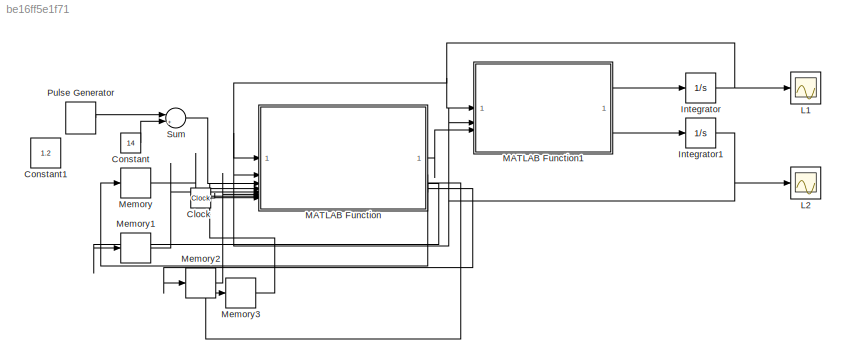
MODEL slx_be16ff5e1f71
KIND model
CONFIG AbsTol = auto
CONFIG EnableMultiTasking = off
CONFIG FixedStep = auto
CONFIG MaxStep = auto
CONFIG MinStep = auto
CONFIG RelTol = 1e-3
CONFIG SampleTimeConstraint = Unconstrained
CONFIG SolverName = VariableStepAuto
CONFIG StartTime = 0.0
CONFIG StopTime = 100
BLOCK [Clock] Clock
BLOCK [Constant] Constant
  Value = 14
BLOCK [Constant] Constant1
  Value = 1.2
BLOCK [Integrator] Integrator
BLOCK [Integrator] Integrator1
BLOCK [Scope] L1
  ActiveDisplayYMaximum = 8.6893327676980583
  ActiveDisplayYMinimum = -8.1372648827145362
  ContainerLayout = {"WindowBounds":[1280,1417,423,710],"gridDimensions":{"w":1,"h":1},"tileCount":1,"tileCoverage":1,"columnWeights":1,"rowWeights":1,"tileOccupancy":{"children":[{"id":"/L2"},{"id":"/L1"}]}}
  Floating = off
  GraphicalSettings = {"Style":{"BackgroundColor":[0.12941176470588237,0.12941176470588237,0.12941176470588237],"AxesColor":[0.07058823529411765,0.07058823529411765,0.07058823529411765],"LabelsColor":[0.8509803921568627,0.8509803921568627,0.8509803921568627],"PreserveColors":false,"Visible":[true],"LineStyle":["-"],"LineWidth":[1.5],"BarWidth":[0.9],"LineColor":["auto"],"LineFaceAlpha":[1],"LineEdgeAlpha":[1],"Marker":...<+1999ch>
  MultipleDisplayCache = [{"MaxYLimMag":7.5719689426856673,"MaxYLimReal":8.6893327676980583,"MinYLimMag":0,"MinYLimReal":-8.1372648827145362,"PlotAsMagnitudePhase":false,"ShowGrid":true,"ShowLegend":false,"Title":"%<SignalLabel>","YLabel":""}]
  NumInputPorts = 1
  WasSavedAsWebScope = on
BLOCK [Scope] L2
  ActiveDisplayYMaximum = 20.189488092755962
  ActiveDisplayYMinimum = -4.3997183929436492
  ContainerLayout = {"WindowBounds":[1280,1417,423,710],"gridDimensions":{"w":1,"h":1},"tileCount":1,"tileCoverage":1,"columnWeights":1,"rowWeights":1,"tileOccupancy":{"children":[{"id":"/L2"},{"id":"/L1"}]}}
  DataLoggingVariableName = ScopeData1
  Floating = off
  GraphicalSettings = {"AxesScalingProperties":{"AlignXAxis":"Center","AlignYAxis":"Center","AutoScaleXAxisLimits":false,"AxesScaling":"Manual","AxesScalingNumUpdates":10,"ExpandOnly":true,"ScaleAxesLimitsAtStop":false,"XAxisDataRange":100,"YAxisDataRange":80},"DisplayProperties":{"ColorOrder":["auto","auto","auto","auto","auto","auto","auto","auto","auto","auto","auto","auto","auto","auto","auto","auto","auto","auto",...<+2014ch>
  MultipleDisplayCache = [{"MaxYLimMag":16.862840807774788,"MaxYLimReal":20.189488092755962,"MinYLimMag":0,"MinYLimReal":-4.3997183929436492,"PlotAsMagnitudePhase":false,"ShowGrid":true,"ShowLegend":false,"Title":"%<SignalLabel>","YLabel":""}]
  NumInputPorts = 1
  WasSavedAsWebScope = on
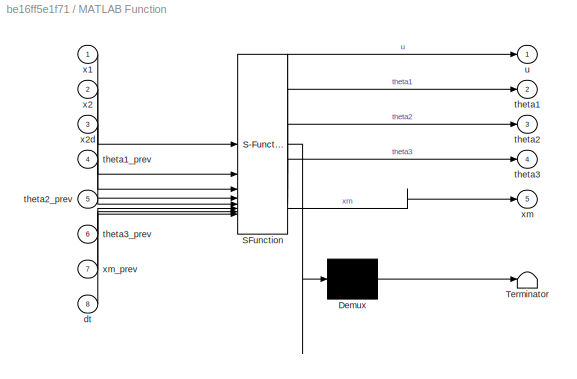
BLOCK [SubSystem] MATLAB Function
  ErrorFcn = Stateflow.Translate.translate
  PermitHierarchicalResolution = ExplicitOnly
  SFBlockType = MATLAB Function
  TreatAsAtomicUnit = on
BLOCK [Demux] MATLAB Function/ Demux 
  Outputs = 1
BLOCK [S-Function] MATLAB Function/ SFunction 
  EnableBusSupport = off
  FunctionName = sf_sfun
  PortCounts = [8 6]
  SFcnIsStateOwnerBlock = off
  SFunctionDeploymentMode = off
  Tag = Stateflow S-Function 2
BLOCK [Terminator] MATLAB Function/ Terminator 
BLOCK [Inport] MATLAB Function/dt
  Port = 8
BLOCK [Outport] MATLAB Function/theta1
  Port = 2
BLOCK [Inport] MATLAB Function/theta1_prev
  Port = 4
BLOCK [Outport] MATLAB Function/theta2
  Port = 3
BLOCK [Inport] MATLAB Function/theta2_prev
  Port = 5
BLOCK [Outport] MATLAB Function/theta3
  Port = 4
BLOCK [Inport] MATLAB Function/theta3_prev
  Port = 6
BLOCK [Outport] MATLAB Function/u
BLOCK [Inport] MATLAB Function/x1
BLOCK [Inport] MATLAB Function/x2
  Port = 2
BLOCK [Inport] MATLAB Function/x2d
  Port = 3
BLOCK [Outport] MATLAB Function/xm
  Port = 5
BLOCK [Inport] MATLAB Function/xm_prev
  Port = 7
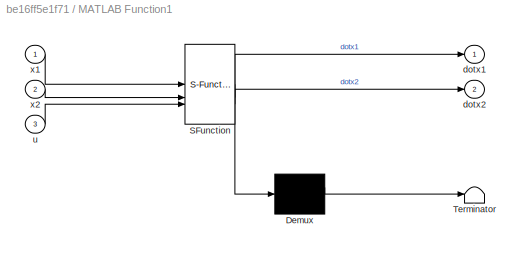
BLOCK [SubSystem] MATLAB Function1
  ErrorFcn = Stateflow.Translate.translate
  PermitHierarchicalResolution = ExplicitOnly
  SFBlockType = MATLAB Function
  TreatAsAtomicUnit = on
BLOCK [Demux] MATLAB Function1/ Demux 
  Outputs = 1
BLOCK [S-Function] MATLAB Function1/ SFunction 
  EnableBusSupport = off
  FunctionName = sf_sfun
  PortCounts = [3 3]
  SFcnIsStateOwnerBlock = off
  SFunctionDeploymentMode = off
  Tag = Stateflow S-Function 1
BLOCK [Terminator] MATLAB Function1/ Terminator 
BLOCK [Outport] MATLAB Function1/dotx1
BLOCK [Outport] MATLAB Function1/dotx2
  Port = 2
BLOCK [Inport] MATLAB Function1/u
  Port = 3
BLOCK [Inport] MATLAB Function1/x1
BLOCK [Inport] MATLAB Function1/x2
  Port = 2
BLOCK [Memory] Memory
  InitialCondition = 0.5
BLOCK [Memory] Memory1
  InitialCondition = 0.5
BLOCK [Memory] Memory2
  InitialCondition = 0.5
BLOCK [Memory] Memory3
  InitialCondition = 0.5
BLOCK [DiscretePulseGenerator] Pulse Generator
  Amplitude = 2
  Period = 20
  PulseType = Time based
  PulseWidth = 50
BLOCK [Sum] Sum
  Inputs = |++
LINE Clock:1 -> MATLAB Function:8
LINE Constant:1 -> Sum:2
NET Integrator1:1 -> L2:1, MATLAB Function1:2, MATLAB Function:2
NET Integrator:1 -> L1:1, MATLAB Function1:1, MATLAB Function:1
LINE MATLAB Function1:1 -> Integrator:1
LINE MATLAB Function1:2 -> Integrator1:1
LINE MATLAB Function:1 -> MATLAB Function1:3
LINE MATLAB Function:2 -> Memory:1
LINE MATLAB Function:3 -> Memory1:1
LINE MATLAB Function:4 -> Memory2:1
LINE MATLAB Function:5 -> Memory3:1
LINE Memory1:1 -> MATLAB Function:5
LINE Memory2:1 -> MATLAB Function:6
LINE Memory3:1 -> MATLAB Function:7
LINE Memory:1 -> MATLAB Function:4
LINE Pulse Generator:1 -> Sum:1
LINE Sum:1 -> MATLAB Function:3
note: NET lines group one-source signal fan-out (src -> all destinations, sorted); 1:1 wires keep LINE
CHART MATLAB Function1 states=1 transitions=1
  STATE_LABEL 'eML_blk_kernel()'
  STATE_LABEL 'SCRIPT:\nfunction [dotx1, dotx2] = tank_dynamics_mrac(x1, x2, u)\n% TANK_DYNAMICS_MRAC - Dinámica de tanques para control MRAC\n\n% PARÁMETROS DEL SISTEMA (consistentes con el controlador)\na1 = 1.1513;    % cm^{1/2}/s\na2 = 0.6467;    % cm^{1/2}/s\nb1 = 0.2126;    % cm/s/V\n\n% Asegurar que los niveles sean no negativos\nx1_safe = max(x1, 0.001);\nx2_safe = max(x2, 0.001);\n\n% Ecuaciones de estado\ndotx1 = -a...<+81ch>'
CHART MATLAB Function states=1 transitions=1
  STATE_LABEL 'eML_blk_kernel()'
  STATE_LABEL 'SCRIPT:\nfunction [u, theta1, theta2, theta3, xm] = mrac_controller(...\n    x1, x2, x2d, theta1_prev, theta2_prev, theta3_prev, xm_prev, dt)\n%#codegen\n\n% Especificar dimensiones de salida\nu = zeros(1, 1);           % Salida escalar [1x1]\ntheta1 = zeros(1, 1);      % Parámetro escalar [1x1]\ntheta2 = zeros(1, 1);      % Parámetro escalar [1x1]  \ntheta3 = zeros(1, 1);      % Parámetro escalar [1x1]\nxm...<+913ch>'
CHART  states=0 transitions=0
CHART  states=0 transitions=0
